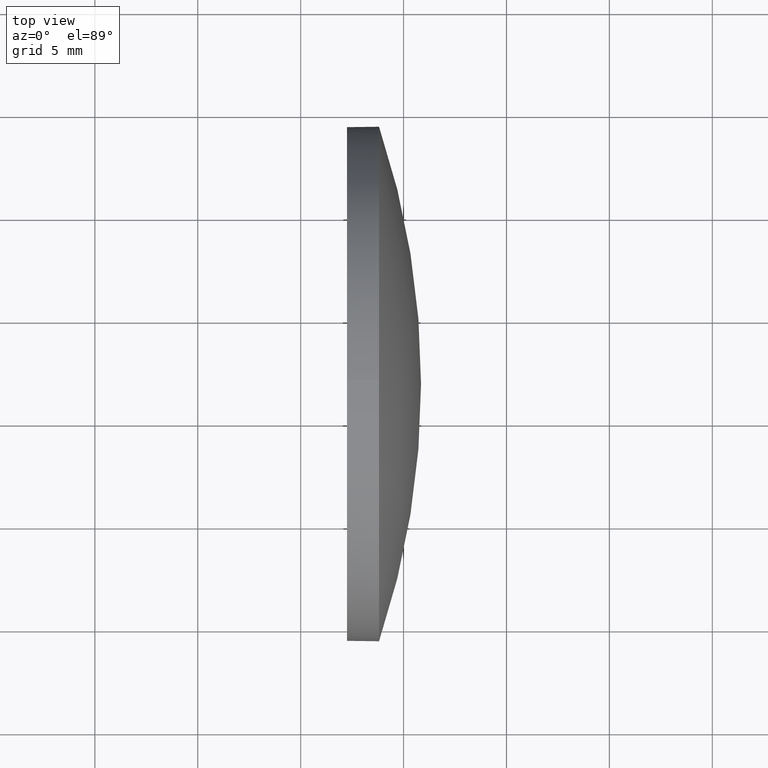
[diagram: clean part render]
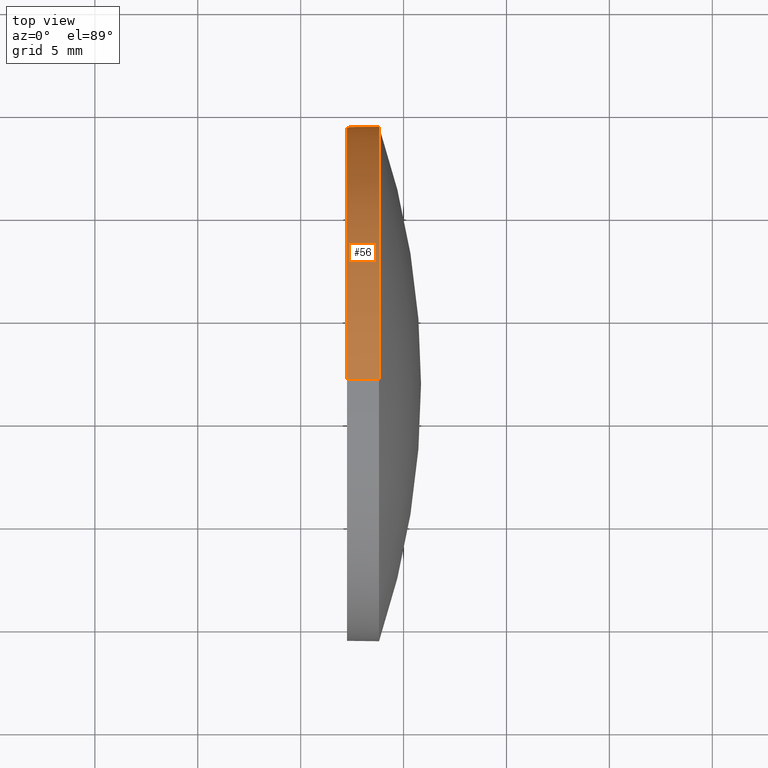
[diagram: same view with one face highlighted and labeled with its STEP entity id]
A machine part, top view. The second image highlights one B-rep face of the part: STEP entity #56.
In plain terms, the highlighted cylindrical surface (partial cylindrical patch) has radius 12.5 mm, axis along (-1, -0, -0).
Its self-contained STEP definition (entity closure, byte-faithful):
#3 = VERTEX_POINT ( 'NONE', #103 ) ;
#6 = CARTESIAN_POINT ( 'NONE',  ( 658.8084244515589500, 194.3210075417636900, 1.530808498934192300E-015 ) ) ;
#15 = CARTESIAN_POINT ( 'NONE',  ( 657.2484244515591200, 181.8210075417636100, -12.50000000000001100 ) ) ;
#17 = ORIENTED_EDGE ( 'NONE', *, *, #90, .T. ) ;
#18 = VERTEX_POINT ( 'NONE', #121 ) ;
#21 = VERTEX_POINT ( 'NONE', #6 ) ;
#22 = DIRECTION ( 'NONE',  ( -1.000000000000000000, -0.0000000000000000000, -0.0000000000000000000 ) ) ;
#29 = CARTESIAN_POINT ( 'NONE',  ( 657.2484244515591200, 181.8210075417636100, 12.50000000000001100 ) ) ;
#31 = EDGE_LOOP ( 'NONE', ( #133, #17, #101, #71, #88 ) ) ;
#33 = AXIS2_PLACEMENT_3D ( 'NONE', #61, #176, #62 ) ;
#34 = CYLINDRICAL_SURFACE ( 'NONE', #33, 12.50000000000001100 ) ;
#37 = DIRECTION ( 'NONE',  ( 0.0000000000000000000, 0.0000000000000000000, 1.000000000000000000 ) ) ;
#42 = EDGE_CURVE ( 'NONE', #140, #114, #178, .T. ) ;
#49 = CARTESIAN_POINT ( 'NONE',  ( 654.8828085487981500, 181.8210075417636100, -12.50000000000001100 ) ) ;
#52 = CARTESIAN_POINT ( 'NONE',  ( 658.8084244515589500, 181.8210075417636100, 0.0000000000000000000 ) ) ;
#56 = ADVANCED_FACE ( 'NONE', ( #156 ), #34, .T. ) ;
#57 = VECTOR ( 'NONE', #151, 1000.000000000000000 ) ;
#61 = CARTESIAN_POINT ( 'NONE',  ( 654.8828085487981500, 181.8210075417636100, 0.0000000000000000000 ) ) ;
#62 = DIRECTION ( 'NONE',  ( 0.0000000000000000000, 0.0000000000000000000, 1.000000000000000000 ) ) ;
#67 = DIRECTION ( 'NONE',  ( 0.0000000000000000000, 0.0000000000000000000, 1.000000000000000000 ) ) ;
#71 = ORIENTED_EDGE ( 'NONE', *, *, #134, .F. ) ;
#75 = CIRCLE ( 'NONE', #170, 12.50000000000001100 ) ;
#77 = EDGE_CURVE ( 'NONE', #18, #21, #75, .T. ) ;
#84 = VECTOR ( 'NONE', #104, 1000.000000000000000 ) ;
#88 = ORIENTED_EDGE ( 'NONE', *, *, #77, .T. ) ;
#90 = EDGE_CURVE ( 'NONE', #3, #114, #139, .T. ) ;
#94 = DIRECTION ( 'NONE',  ( 0.0000000000000000000, 0.0000000000000000000, 1.000000000000000000 ) ) ;
#98 = DIRECTION ( 'NONE',  ( -1.000000000000000000, -0.0000000000000000000, -0.0000000000000000000 ) ) ;
#101 = ORIENTED_EDGE ( 'NONE', *, *, #42, .F. ) ;
#103 = CARTESIAN_POINT ( 'NONE',  ( 658.8084244515589500, 181.8210075417636100, -12.50000000000001100 ) ) ;
#104 = DIRECTION ( 'NONE',  ( -1.000000000000000000, -0.0000000000000000000, -0.0000000000000000000 ) ) ;
#111 = AXIS2_PLACEMENT_3D ( 'NONE', #164, #177, #37 ) ;
#114 = VERTEX_POINT ( 'NONE', #15 ) ;
#116 = AXIS2_PLACEMENT_3D ( 'NONE', #52, #98, #67 ) ;
#121 = CARTESIAN_POINT ( 'NONE',  ( 658.8084244515589500, 181.8210075417636100, 12.50000000000001100 ) ) ;
#133 = ORIENTED_EDGE ( 'NONE', *, *, #157, .T. ) ;
#134 = EDGE_CURVE ( 'NONE', #18, #140, #144, .T. ) ;
#139 = LINE ( 'NONE', #49, #84 ) ;
#140 = VERTEX_POINT ( 'NONE', #29 ) ;
#144 = LINE ( 'NONE', #154, #57 ) ;
#151 = DIRECTION ( 'NONE',  ( -1.000000000000000000, -0.0000000000000000000, -0.0000000000000000000 ) ) ;
#154 = CARTESIAN_POINT ( 'NONE',  ( 654.8828085487981500, 181.8210075417636100, 12.50000000000001100 ) ) ;
#156 = FACE_OUTER_BOUND ( 'NONE', #31, .T. ) ;
#157 = EDGE_CURVE ( 'NONE', #21, #3, #160, .T. ) ;
#160 = CIRCLE ( 'NONE', #116, 12.50000000000001100 ) ;
#164 = CARTESIAN_POINT ( 'NONE',  ( 657.2484244515591200, 181.8210075417636100, 0.0000000000000000000 ) ) ;
#170 = AXIS2_PLACEMENT_3D ( 'NONE', #173, #22, #94 ) ;
#173 = CARTESIAN_POINT ( 'NONE',  ( 658.8084244515589500, 181.8210075417636100, 0.0000000000000000000 ) ) ;
#176 = DIRECTION ( 'NONE',  ( -1.000000000000000000, -0.0000000000000000000, -0.0000000000000000000 ) ) ;
#177 = DIRECTION ( 'NONE',  ( -1.000000000000000000, -0.0000000000000000000, -0.0000000000000000000 ) ) ;
#178 = CIRCLE ( 'NONE', #111, 12.50000000000001100 ) ;